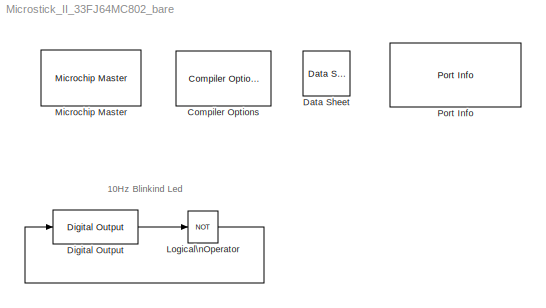
MODEL Microstick_II_33FJ64MC802_bare
KIND model
BLOCK [Reference] Compiler Options  REF=MCHP_Blockset/System Configuration/Compiler Options
  AssemblyListing = off
  COMP_LIST = Dynamic Options
  COMP_LIST_TXT = xc16 - v1.26
  DEBUG_INFO = off
  HEAP_SIZE = 0
  LATEST_CMPLR = on
  MCHP_MASTERLINK = Microstick_II_33FJ64MC802_bare/Microchip Master
  MCHP_MULTITHREAD_COMPILATION = on
  MCODE = is less than 32768 (faster)
  MCONST = in code memory
  MDATA = Use only memory below address 8192 (faster)
  MPLAB_LINKLIB = default
  MPLAB_LINKLIB1 = default
  MSCALAR = Use only memory below address 8192 (faster)
  OMF = elf
  OMIT_FRAME_POINTER = off
  OPTIMIZATION_LEVEL = 3
  PROCEDURAL_ABSTRACTION = off
  Ports = []
  ProduceHexOutput = on
  SID = 2
  SourceBlock = MCHP_Blockset/System Configuration/Compiler Options
  UNROLL_LOOPS = off
  USE_64BIT_DOUBLE = off
BLOCK [Reference] Data Sheet  REF=MCHP_Blockset/System Info/Data Sheet
  AttributesFormatString = %<cpy_MCHP_Id>
  DOC_FileLastCheckTime = [0 0 0 0 0 0]
  DOC_MCHP_Id = 33FJ64MC802
  DOC_Type = datasheet
  MCHP_MASTERLINK = Microstick_II_33FJ64MC802_bare/Microchip Master
  Ports = []
  SID = 3
  SourceBlock = MCHP_Blockset/System Info/Data Sheet
  cpy_MCHP_Id = 33FJ64MC802
BLOCK [Reference] Digital Output  REF=MCHP_Blockset/Digital IO/Digital Output
  FunctionWithSeparateData = off
  MCHP_MASTERLINK = Microstick_II_33FJ64MC802_bare/Microchip Master
  ORDERING = None
  PACK = off
  PIN = 0
  PORT = Dynamic Options
  PORT_TXT = A   [ 0 : 4 ]
  Ports = [1, 1]
  READPREVIOUS = on
  RTWMemSecDataConstants = Inherit from model
  RTWMemSecDataInternal = Inherit from model
  RTWMemSecDataParameters = Inherit from model
  RTWMemSecFuncExecute = Inherit from model
  RTWMemSecFuncInitTerm = Inherit from model
  SID = 4
  SIMULTANEOUS = off
  SampleTime = .05
  ShowPortLabels = FromPortIcon
  SourceBlock = MCHP_Blockset/Digital IO/Digital Output
  SystemSampleTime = -1
BLOCK [Logic] Logical\nOperator
  AllPortsSameDT = off
  Operator = NOT
  OutDataTypeMode = boolean
  OutDataTypeStr = boolean
  Ports = [1, 1]
  SID = 5
BLOCK [Reference] Microchip Master  REF=MCHP_Blockset/System Configuration/Microchip Master
  ACTIV_PLL = off
  ACTIV_PLL_spd = off
  AIVTDIS = Disable Alternate Vector Table
  ALTADREF = AVREF+/AVREF- are mapped to RA9/RA10
  ALTCMPI = C1INC is on RB13; C2INC is on RB9 and C3INC is on RA0
  ALTCVREF = CVREF+/CVREF- are mapped to RA9/RA10
  ALTI2C = I2C mapped to SDA1/SCL1 pins
  ALTI2C1 = I2C1 mapped to SDA1/SCL1 pins
  ALTI2C2 = I2C2 mapped to SDA2/SCL2 pins
  ALTPMP = EPMP pins are in default location mode
  ALTQIO = QEA1; QEB1; INDX1 are selected as inputs to QEI1
  ALTRB6 = Append the RP6/ASCL1/PMPD6 functions of RB6 to RA1 pin functions
  ALTSS1 = SS1A is selected as the I/O pin for SPI1
  ALTVREF = Voltage reference input; ADC =RA9/RA10 Comparator =RA9;RA10
  APL = Aux Flash Code protect is disabled
  APLK = Aux Flash Write Protection or Code Protection is Enabled
  ATMOD8 = Not used
  AWRP = Aux Flash may be written
  BACKBUG = Not used
  BKBUG = Device resets into Operational mode
  BODENV = 2.7V
  BOOTISA = Boot code and Exception code is MIPS32
  BOREN = Disable
  BOREN0 = Enabled
  BOREN1 = BOR Enabled [When BOREN=1]
  BORV = Brown-out Reset set at 2.0V
  BSEN = No Boot Segment
  BSLIM = Not used
  BSS = No boot program Flash segment
  BSS2 = No Boot Segment
  BTMODE = Device is in Single Boot (legacy) mode
  BTSWP = Not used
  BUSYFLAG = Dynamic Options
  BUSYFLAG_TXT = None
  BWP = Protection Disabled
  BWRP = Boot Segment may be written
  CMPPOL0 = Hysteresis is applied to falling edge
  CMPPOL1 = Hysteresis is applied to falling edge
  COE = Reset Into Operational Mode
  CP = Protection Disabled
  CSEQ = Not used
  CSS = No Protection (other than CWRP)
  CTXT1 = Not Assigned
  CTXT2 = Not Assigned
  CWRP = Configuration Segment may be written
  DBCC = Not used
  DBGPER = Allow CPU access to all permission regions
  DEBUG = Debugger is disabled
  DFMCY = Not used
  DISUVREG = Regulator is disabled
  DMTCNT = 2^31 (2147483648)
  DMTEN = Dead Man Timer is Enabled and cannot be disabled by software
  DMTINTV = Window/Interval value is 127/128 counter value
  DMTIVT = Not used
  DSBOREN = Deep Sleep BOR enabled in Deep Sleep
  DSLPBOR = Deep Sleep BOR enabled in Deep Sleep
  DSSWEN = Deep Sleep is controlled by the register bit DSEN
  DSWDTEN = DSWDT enabled
  DSWDTOSC = DSWDT uses Low Power RC Oscillator (LPRC)
  DSWDTPS = 1:2;147;483;648 (25.7 Days)
  EBS = No Boot EEPROM
  EJTAGBEN = Normal EJTAG functionality
  ESS = No Segment Data EEPROM
  EXTDDRSIZE = External DDR2 Size is 128 MB
  FCANIO = Default CAN I/O
  FCKSM = Both Clock Switching and Fail-safe Clock Monitor are disabled
  FCKSMEN = Sw Disabled; Mon Disabled
  FDMTEN = Deadman Timer is disabled
  FECCCON = ECC and Dynamic ECC are disabled (ECCCON bits are writable)
  FETHIO = Default Ethernet I/O
  FMIIEN = MII Enabled
  FNOSC = Internal Fast RC (FRC)
  FOS = Primary Oscillator
  FOSFPR = HS3 w/PLL 16x
  FPBDIV = Pb_Clk is Sys_Clk/8
  FPLLICLK = FRC is input to the System PLL
  FPLLIDIV = 12x Divider
  FPLLMUL = 24x Multiplier
  FPLLMULT = PLL Multiply by 128
  FPLLODIV = PLL Divide by 256
  FPLLRNG = 34-68 MHz Input
  FPR = ECIO w/ PLL 16x
  FPWRT = 128ms
  FRANGE = High Range
  FSLEEP = Flash is powered down when the device is in Sleep mode
  FSOSCEN = Enabled
  FSRSSEL = SRS Priority 7
  FUSBIDIO = Controlled by the USB Module
  FVBUSONIO = Controlled by USB Module
  FWDTEN = Disable
  FWDTWINSZ = Window size is 25%
  FWPSA = WDT prescaler ratio of 1:128
  FWPSA0 = 1:128
  FWPSB = 1:16
  GCP = General Segment Code protect is disabled
  GSS = User program memory is not code-protected
  GSS0 = No protection
  GSSK = General Segment Write Protection or Code Protection is Enabled
  GWRP = General Segment may be written
  HPOL = PWM module high side output pins have active-high output polarity
  HYST0 = 45 mV Hysteresis
  HYST1 = 45 mV Hysteresis
  I2C1SEL = Use Default SCL1/SDA1 Pins For I2C1
  I2C2SEL = I2C2 is multiplexed to SDA2/RA3 and SCL2/RA2
  ICESEL = Communicate on PGEC1/PGED1
  ICS = Communicate on PGEC1 and PGED1
  IESO = Start up with FRC; then switch
  IOL1WAY = Allow Only One Re-configuration
  JTAGEN = Disable
  LPCFG = Disabled - regardless of RETEN
  LPOL = PWM module low side output pins have active-high output polarity
  LPRCSEL = High Power; High Accuracy Mode
  LVRCFG = Low Voltage regulator is not available
  MCHPVAR = MCHP.fcy.periph=3685000;MCHP.fcy.MIPS=3685000;MCHP.PowerSave=0;MCHP.TimeStepFactor=1;MCHP.TimeStep_Timer=1;MCHP.NTIMERS=5;MCHP.id.name='33FJ64MC802';MCHP.id.N=reshape([33 64 802],1,3);MCHP.id.L=reshape({ 'FJ','MC',''},1,3);MCHP.id.Arch=3;MCHP.periph.PPS.reg_RPINRx=reshape([-1 1 1 -1 -1 -1 1 1 1 1 -1 -1 -1 -1 1 1 -1 -1 -1 -1 1 1 -1 -1 1 -1 1 -1 1 1 1 -1 1 1 1 -1 1 1 1 1 1 1 1 -1 1 1 1 -1 -1 -1 -1 -...<+5209ch>
  MCHP_CRC = 3817413
  MCHP_PLLRegisters = [-1 -1 -1 -1]
  MCHP_TIMER_REQUEST = {Time Step}{TS}0:2:3:1:[]:3685;
  MCHP_TIMER_RESULT = [1 3684 ]
  MCLRE = RA5 input pin disabled;MCLR pin enabled
  MIPS = 3.6850000000000001 * 1e6
  MIPS_DESIRED = 7370000
  MIPS_DESIRED_spd = 7370000
  ON = Not used
  OSCILLATOR_SELECT = Internal Fast RC (FRC)
  OSCILLATOR_SELECT_spd = Internal Fast RC (FRC)
  OSCIOFCN = OSCO/CLKO/RA3 functions as CLKO (FOSC/2)
  OSCIOFNC = OSC2 pin has digital I/O function
  PGL1WAY = Allow only one reconfiguration
  PICREF = 33FJ64MC802
  PLL96MHZ = 96 MHz PLL Startup is enabled automatically on start-up
  PLLDIV = PLL is disabled
  PLLKEN = Clock switch to PLL source will wait until the PLL lock signal is valid.
  PLLSS = PLL is fed by the Primary oscillator
  PLL_96MHZ = Enabled
  PMDL1WAY = Allow only one reconfiguration
  POSCBOOST = Boost the kick start of the oscillator
  POSCFREQ = Primary oscillator/external clock input frequency greater than 8MHz
  POSCGAIN = 2x gain setting
  POSCMD = Primary Oscillator Disabled
  POSCMOD = Primary Oscillator Disabled
  POWERSAVE = off
  PWMLOCK = PWM registers may be written without key sequence
  PWMPIN = PWM module pins controlled by PORT register at device Reset
  PWP = Disable
  PWRTEN = PWRT enabled
  Ports = []
  QUARTZ = 7.37e+06
  QUARTZ_spd = 7.37e+06
  RBS = No Boot RAM
  RES = Not used
  RES1 = Not used
  RES2 = Not used
  RESERVED1 = Not used
  RETCFG = Retention regulator is not available
  RSS = No Secure RAM
  RSTPRI = Device will obtain reset instruction from Primary flash
  RTCBAT = RTC operation is continued through VBAT
  RTCOSC = RTCC uses Secondary Oscillator (SOSC)
  SEQNUM = Not used
  SID = 1
  SMCLR = MCLR pin generates a normal system Reset
  SOSCBOOST = Boost the kick start of the oscillator
  SOSCGAIN = 2x gain setting
  SOSCSEL = Secondary oscillator configured for high-power operation
  SOSCSRC = Analog Mode for use with crystal
  SSS = No Secure Segment
  SWRP = Secure segment may be written
  SourceBlock = MCHP_Blockset/System Configuration/Microchip Master
  TEMP = Not used
  TIMESTEP_REF = Timer  ( 0.001s )
  TRCEN = Trace features in the CPU are enabled
  TSEQ = Not used
  UPLLEN = Disabled and bypassed
  UPLLFSEL = USB PLL input is 24 MHz
  UPLLIDIV = 12x Divider
  USERID = Not used
  VBTBOR = VBAT BOR enabled
  WDT = Disable
  WDTCLK = WDT uses LPRC
  WDTCMX = WDT clock source is determined by the WDTCLK Configuration bits
  WDTEN = Disable
  WDTPOST = 1:32768
  WDTPRE = 1:128
  WDTPS = 1:32768
  WDTSPGM = WDT stops during Flash programming
  WDTWIN = WDT Window is 25% of WDT period
  WINDIS = Watchdog Timer in Non-Window mode
  WPCFG = Disable
  WPDIS = Disable
  WPEND = Write Protect from WPFP to the last page of memory
  WPFP = Page 127 (0x1FC00)
  WUTSEL = Default regulator start-up time used
  WWDTEN = Non-Window mode
  nSEQNUM = Not used
BLOCK [Reference] Port Info  REF=MCHP_Blockset/System Info/Port Info
  MCHP_MASTERLINK = Microstick_II_33FJ64MC802_bare/Microchip Master
  Ports = []
  SID = 6
  SourceBlock = MCHP_Blockset/System Info/Port Info
ANNOTATION (root): 10Hz Blinkind Led
LINE Digital Output:1 -> Logical\nOperator:1
LINE Logical\nOperator:1 -> Digital Output:1
